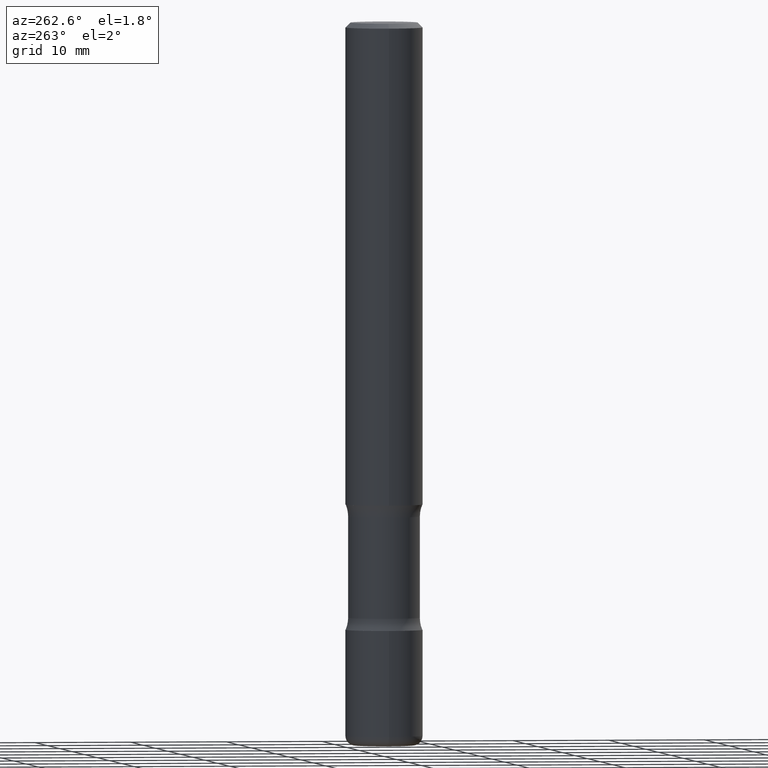
[diagram: clean part render]
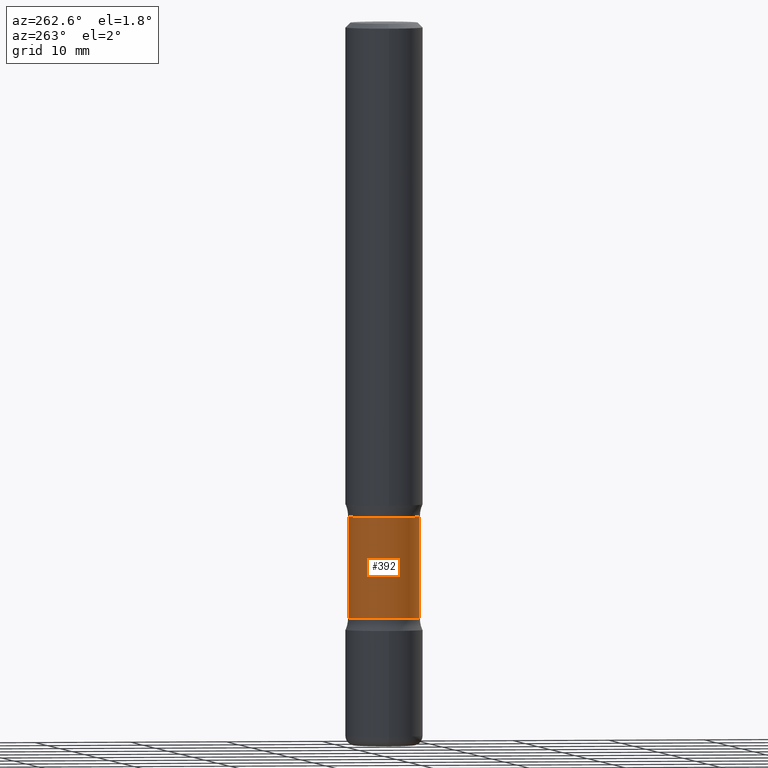
[diagram: same view with one face highlighted and labeled with its STEP entity id]
A machine part, auxiliary view. The second image highlights one B-rep face of the part: STEP entity #392.
In plain terms, the highlighted cylindrical surface (edge-blend (fillet) strip) has radius 3.7427 mm, axis along (0, -0, -1).
Its self-contained STEP definition (entity closure, byte-faithful):
#3 = ORIENTED_EDGE ( 'NONE', *, *, #547, .T. ) ;
#16 = CARTESIAN_POINT ( 'NONE',  ( 5.943628762121094077E-29, -8.490077908476165751E-15, -2.431059575397043204 ) ) ;
#24 = CARTESIAN_POINT ( 'NONE',  ( -1.045711407310277305E-15, -0.1473500000000070587, -2.017840424602955984 ) ) ;
#47 = CYLINDRICAL_SURFACE ( 'NONE', #487, 0.1473500000000000087 ) ;
#59 = EDGE_CURVE ( 'NONE', #237, #482, #464, .T. ) ;
#98 = VERTEX_POINT ( 'NONE', #162 ) ;
#132 = CARTESIAN_POINT ( 'NONE',  ( 7.234878300801473340E-29, -1.028974335613649852E-14, -2.952799999999999869 ) ) ;
#138 = DIRECTION ( 'NONE',  ( 2.474888810202925163E-29, -3.449350218607033250E-15, -1.000000000000000000 ) ) ;
#141 = FACE_OUTER_BOUND ( 'NONE', #353, .T. ) ;
#162 = CARTESIAN_POINT ( 'NONE',  ( 1.028939550557120386E-15, 0.1473499999999929033, -2.017840424602956872 ) ) ;
#164 = CARTESIAN_POINT ( 'NONE',  ( 1.028939550557130839E-15, 0.1473499999999915433, -2.431059575397043648 ) ) ;
#171 = ORIENTED_EDGE ( 'NONE', *, *, #59, .F. ) ;
#177 = CARTESIAN_POINT ( 'NONE',  ( -1.045711407310266063E-15, -0.1473500000000085020, -2.431059575397042760 ) ) ;
#185 = ORIENTED_EDGE ( 'NONE', *, *, #447, .T. ) ;
#202 = DIRECTION ( 'NONE',  ( 2.474888810202925163E-29, -3.449350218607033250E-15, -1.000000000000000000 ) ) ;
#237 = VERTEX_POINT ( 'NONE', #24 ) ;
#241 = VECTOR ( 'NONE', #549, 39.37007874015748143 ) ;
#259 = EDGE_CURVE ( 'NONE', #482, #349, #284, .T. ) ;
#274 = CIRCLE ( 'NONE', #444, 0.1473499999999999810 ) ;
#284 = CIRCLE ( 'NONE', #425, 0.1473500000000000087 ) ;
#308 = ORIENTED_EDGE ( 'NONE', *, *, #259, .F. ) ;
#335 = DIRECTION ( 'NONE',  ( 6.982962677686265133E-15, 1.000000000000000000, -3.707971487837480522E-15 ) ) ;
#349 = VERTEX_POINT ( 'NONE', #164 ) ;
#352 = DIRECTION ( 'NONE',  ( 2.474888810202925163E-29, -3.449350218607033250E-15, -1.000000000000000000 ) ) ;
#353 = EDGE_LOOP ( 'NONE', ( #171, #3, #185, #308 ) ) ;
#392 = ADVANCED_FACE ( 'NONE', ( #141 ), #47, .T. ) ;
#396 = DIRECTION ( 'NONE',  ( 6.982962677686265133E-15, 1.000000000000000000, -3.707971487837479733E-15 ) ) ;
#416 = CARTESIAN_POINT ( 'NONE',  ( 4.920957309659253149E-29, -7.064740340351969652E-15, -2.017840424602956428 ) ) ;
#425 = AXIS2_PLACEMENT_3D ( 'NONE', #16, #138, #446 ) ;
#444 = AXIS2_PLACEMENT_3D ( 'NONE', #416, #202, #335 ) ;
#446 = DIRECTION ( 'NONE',  ( 6.982962677686266711E-15, 1.000000000000000000, -3.707971487837479733E-15 ) ) ;
#447 = EDGE_CURVE ( 'NONE', #98, #349, #527, .T. ) ;
#464 = LINE ( 'NONE', #467, #241 ) ;
#467 = CARTESIAN_POINT ( 'NONE',  ( -1.010894379971562693E-15, -0.1473500000000103061, -2.952799999999998981 ) ) ;
#470 = DIRECTION ( 'NONE',  ( 2.474888810202925163E-29, -3.449350218607032856E-15, -1.000000000000000000 ) ) ;
#481 = CARTESIAN_POINT ( 'NONE',  ( 1.028939550557143658E-15, 0.1473499999999897114, -2.952800000000000313 ) ) ;
#482 = VERTEX_POINT ( 'NONE', #177 ) ;
#487 = AXIS2_PLACEMENT_3D ( 'NONE', #132, #352, #396 ) ;
#504 = VECTOR ( 'NONE', #470, 39.37007874015748143 ) ;
#527 = LINE ( 'NONE', #481, #504 ) ;
#547 = EDGE_CURVE ( 'NONE', #237, #98, #274, .T. ) ;
#549 = DIRECTION ( 'NONE',  ( 2.474888810202925163E-29, -3.449350218607032856E-15, -1.000000000000000000 ) ) ;